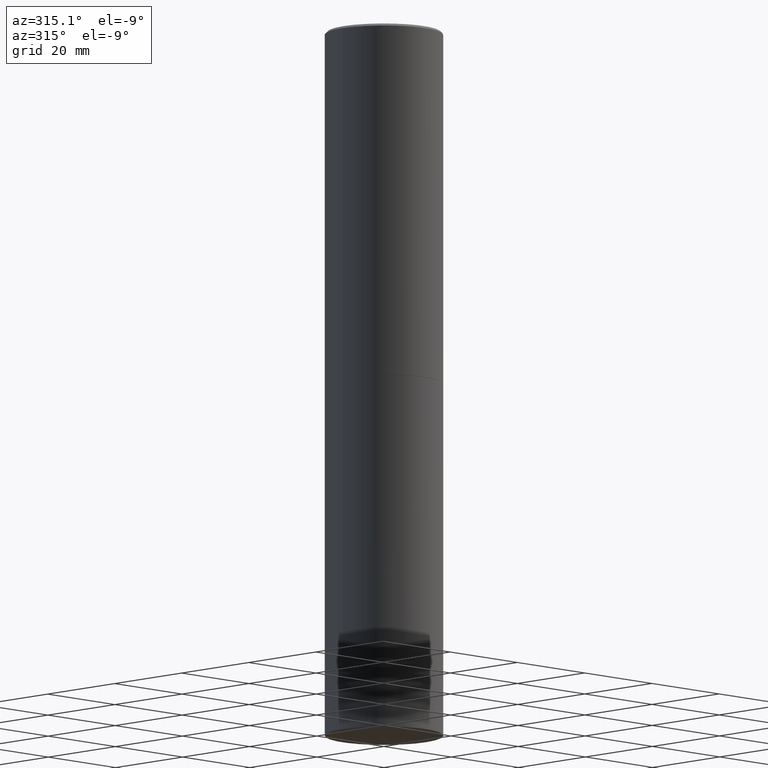
[diagram: clean part render]
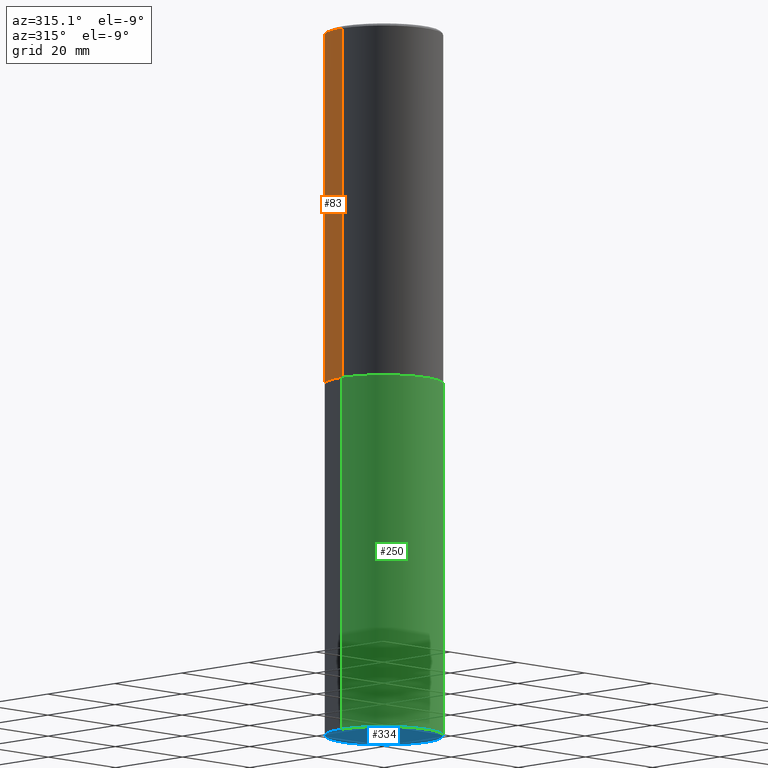
[diagram: same view with three faces highlighted in distinct colors, each labeled with its STEP entity id]
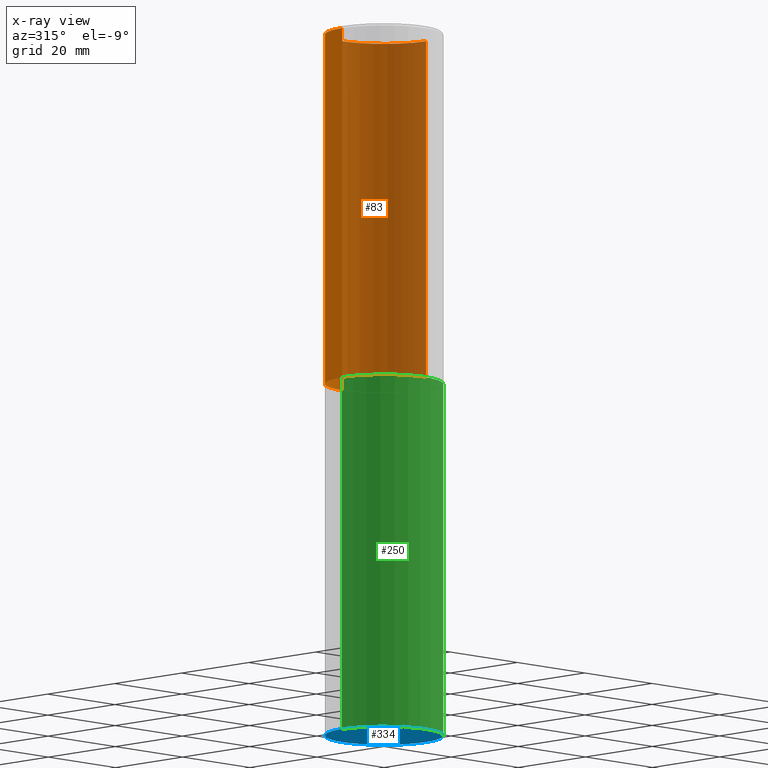
[diagram: x-ray of the same camera — body ghosted, the three highlighted faces saturated]
A machine part, auxiliary view with three faces highlighted in distinct colors.
The next image is the same camera in x-ray (body ghosted, the three faces saturated) — at least one of them is partly hidden behind the body in this view.
Their STEP definitions:

[orange] entity #83 — the highlighted cylindrical surface (partial cylindrical patch) has radius 12.5006 mm, axis along (-0, 0, 1).
#1 = LINE ( 'NONE', #234, #273 ) ;
#7 = CARTESIAN_POINT ( 'NONE',  ( 7.218290275216666916E-29, -1.030580546786331359E-14, -2.951700000000000212 ) ) ;
#24 = EDGE_CURVE ( 'NONE', #87, #362, #218, .T. ) ;
#28 = CARTESIAN_POINT ( 'NONE',  ( 0.4921499999999996988, -3.446223716380120377E-15, -0.02000000000000009409 ) ) ;
#39 = DIRECTION ( 'NONE',  ( 1.000000000000000000, -6.982962677686265922E-15, 0.000000000000000000 ) ) ;
#40 = AXIS2_PLACEMENT_3D ( 'NONE', #7, #116, #39 ) ;
#44 = CARTESIAN_POINT ( 'NONE',  ( -0.4921499999999996988, 3.366835455046430506E-15, -0.02000000000000009409 ) ) ;
#63 = DIRECTION ( 'NONE',  ( -2.445468806185136597E-29, 3.491481338843145583E-15, 1.000000000000000000 ) ) ;
#65 = DIRECTION ( 'NONE',  ( 1.000000000000000000, -6.982962677686265922E-15, 4.876176775795935793E-29 ) ) ;
#69 = CYLINDRICAL_SURFACE ( 'NONE', #153, 0.4921499999999998098 ) ;
#72 = ORIENTED_EDGE ( 'NONE', *, *, #141, .F. ) ;
#74 = EDGE_LOOP ( 'NONE', ( #246, #81, #127, #72 ) ) ;
#77 = CIRCLE ( 'NONE', #40, 0.4921499999999999764 ) ;
#81 = ORIENTED_EDGE ( 'NONE', *, *, #24, .T. ) ;
#83 = ADVANCED_FACE ( 'NONE', ( #267 ), #69, .T. ) ;
#85 = DIRECTION ( 'NONE',  ( -2.445468806185136877E-29, 3.491481338843145188E-15, 1.000000000000000000 ) ) ;
#87 = VERTEX_POINT ( 'NONE', #123 ) ;
#94 = VERTEX_POINT ( 'NONE', #28 ) ;
#113 = EDGE_CURVE ( 'NONE', #342, #87, #77, .T. ) ;
#116 = DIRECTION ( 'NONE',  ( -2.445468806185136597E-29, 3.491481338843145583E-15, 1.000000000000000000 ) ) ;
#123 = CARTESIAN_POINT ( 'NONE',  ( -0.4921499999999999764, -1.690881473276754954E-15, -2.951700000000000212 ) ) ;
#127 = ORIENTED_EDGE ( 'NONE', *, *, #254, .F. ) ;
#139 = CARTESIAN_POINT ( 'NONE',  ( -0.4921499999999998098, 3.496936074043331714E-15, -2.420853904668950949E-29 ) ) ;
#141 = EDGE_CURVE ( 'NONE', #342, #94, #1, .T. ) ;
#153 = AXIS2_PLACEMENT_3D ( 'NONE', #258, #63, #65 ) ;
#159 = CARTESIAN_POINT ( 'NONE',  ( 4.890937612370296805E-31, -6.982962677686323656E-17, -0.02000000000000009409 ) ) ;
#188 = DIRECTION ( 'NONE',  ( -2.445468806185136597E-29, 3.491481338843145583E-15, 1.000000000000000000 ) ) ;
#212 = CARTESIAN_POINT ( 'NONE',  ( 0.4921499999999999764, -1.374247054968660936E-14, -2.951700000000000212 ) ) ;
#218 = LINE ( 'NONE', #139, #293 ) ;
#221 = CIRCLE ( 'NONE', #338, 0.4921499999999996988 ) ;
#234 = CARTESIAN_POINT ( 'NONE',  ( 0.4921499999999998098, -3.436665081823294593E-15, 2.399810400207968762E-29 ) ) ;
#246 = ORIENTED_EDGE ( 'NONE', *, *, #113, .T. ) ;
#254 = EDGE_CURVE ( 'NONE', #94, #362, #221, .T. ) ;
#258 = CARTESIAN_POINT ( 'NONE',  ( 0.000000000000000000, 0.000000000000000000, 0.000000000000000000 ) ) ;
#267 = FACE_OUTER_BOUND ( 'NONE', #74, .T. ) ;
#273 = VECTOR ( 'NONE', #299, 39.37007874015748143 ) ;
#293 = VECTOR ( 'NONE', #85, 39.37007874015748143 ) ;
#296 = DIRECTION ( 'NONE',  ( 1.000000000000000000, -6.982962677686265922E-15, 0.000000000000000000 ) ) ;
#299 = DIRECTION ( 'NONE',  ( -2.445468806185136877E-29, 3.491481338843145188E-15, 1.000000000000000000 ) ) ;
#338 = AXIS2_PLACEMENT_3D ( 'NONE', #159, #188, #296 ) ;
#342 = VERTEX_POINT ( 'NONE', #212 ) ;
#362 = VERTEX_POINT ( 'NONE', #44 ) ;

[blue] entity #334 — the highlighted planar face has unit normal (0, -0, -1).
#19 = DIRECTION ( 'NONE',  ( 1.000000000000000000, -6.982962677686265922E-15, 0.000000000000000000 ) ) ;
#43 = CARTESIAN_POINT ( 'NONE',  ( 1.444171603492632270E-28, -2.061894304653819197E-14, -5.905499999999999972 ) ) ;
#100 = DIRECTION ( 'NONE',  ( -2.445468806185136597E-29, 3.491481338843145583E-15, 1.000000000000000000 ) ) ;
#101 = CARTESIAN_POINT ( 'NONE',  ( 0.4921499999999999764, -2.405560812836148932E-14, -5.905499999999999972 ) ) ;
#112 = DIRECTION ( 'NONE',  ( 2.438088387897960049E-29, -3.491481338843145188E-15, -1.000000000000000000 ) ) ;
#137 = DIRECTION ( 'NONE',  ( -1.000000000000000000, 6.982962677686265922E-15, -4.876176775795935793E-29 ) ) ;
#155 = DIRECTION ( 'NONE',  ( 1.000000000000000000, -6.982962677686265922E-15, 0.000000000000000000 ) ) ;
#158 = FACE_OUTER_BOUND ( 'NONE', #223, .T. ) ;
#176 = CIRCLE ( 'NONE', #268, 0.4921499999999999764 ) ;
#205 = CARTESIAN_POINT ( 'NONE',  ( -0.4921499999999999764, -1.196718392382684217E-14, -5.905499999999999972 ) ) ;
#213 = CARTESIAN_POINT ( 'NONE',  ( 1.444171603492632270E-28, -2.061894304653819197E-14, -5.905499999999999972 ) ) ;
#219 = CARTESIAN_POINT ( 'NONE',  ( 3.436665081823440533E-15, 0.4921499999999793262, -5.905500000000001748 ) ) ;
#223 = EDGE_LOOP ( 'NONE', ( #276, #256 ) ) ;
#229 = AXIS2_PLACEMENT_3D ( 'NONE', #219, #112, #137 ) ;
#232 = EDGE_CURVE ( 'NONE', #336, #358, #176, .T. ) ;
#253 = AXIS2_PLACEMENT_3D ( 'NONE', #213, #357, #19 ) ;
#256 = ORIENTED_EDGE ( 'NONE', *, *, #271, .F. ) ;
#268 = AXIS2_PLACEMENT_3D ( 'NONE', #43, #100, #155 ) ;
#271 = EDGE_CURVE ( 'NONE', #358, #336, #360, .T. ) ;
#276 = ORIENTED_EDGE ( 'NONE', *, *, #232, .F. ) ;
#329 = PLANE ( 'NONE',  #229 ) ;
#334 = ADVANCED_FACE ( 'NONE', ( #158 ), #329, .T. ) ;
#336 = VERTEX_POINT ( 'NONE', #101 ) ;
#357 = DIRECTION ( 'NONE',  ( -2.445468806185136597E-29, 3.491481338843145583E-15, 1.000000000000000000 ) ) ;
#358 = VERTEX_POINT ( 'NONE', #205 ) ;
#360 = CIRCLE ( 'NONE', #253, 0.4921499999999999764 ) ;

[green] entity #250 — the highlighted cylindrical surface (partial cylindrical patch) has radius 12.5006 mm, axis along (-0, 0, 1).
#10 = CYLINDRICAL_SURFACE ( 'NONE', #14, 0.4921499999999999764 ) ;
#13 = FACE_OUTER_BOUND ( 'NONE', #207, .T. ) ;
#14 = AXIS2_PLACEMENT_3D ( 'NONE', #244, #84, #324 ) ;
#17 = CARTESIAN_POINT ( 'NONE',  ( 7.220735744022852519E-29, -1.030929694920215502E-14, -2.952700000000000102 ) ) ;
#19 = DIRECTION ( 'NONE',  ( 1.000000000000000000, -6.982962677686265922E-15, 0.000000000000000000 ) ) ;
#22 = ORIENTED_EDGE ( 'NONE', *, *, #46, .F. ) ;
#31 = AXIS2_PLACEMENT_3D ( 'NONE', #17, #248, #303 ) ;
#41 = VERTEX_POINT ( 'NONE', #196 ) ;
#46 = EDGE_CURVE ( 'NONE', #60, #41, #227, .T. ) ;
#54 = CARTESIAN_POINT ( 'NONE',  ( -0.4921499999999999764, -1.196718392382684217E-14, -2.952700000000000102 ) ) ;
#60 = VERTEX_POINT ( 'NONE', #54 ) ;
#84 = DIRECTION ( 'NONE',  ( -2.445468806185136597E-29, 3.491481338843145583E-15, 1.000000000000000000 ) ) ;
#88 = EDGE_CURVE ( 'NONE', #358, #60, #178, .T. ) ;
#101 = CARTESIAN_POINT ( 'NONE',  ( 0.4921499999999999764, -2.405560812836148932E-14, -5.905499999999999972 ) ) ;
#102 = LINE ( 'NONE', #239, #138 ) ;
#138 = VECTOR ( 'NONE', #321, 39.37007874015748143 ) ;
#173 = DIRECTION ( 'NONE',  ( -2.445468806185136877E-29, 3.491481338843145188E-15, 1.000000000000000000 ) ) ;
#178 = LINE ( 'NONE', #288, #241 ) ;
#196 = CARTESIAN_POINT ( 'NONE',  ( 0.4921499999999999764, -1.374596203102545079E-14, -2.952700000000000102 ) ) ;
#198 = EDGE_CURVE ( 'NONE', #336, #41, #102, .T. ) ;
#205 = CARTESIAN_POINT ( 'NONE',  ( -0.4921499999999999764, -1.196718392382684217E-14, -5.905499999999999972 ) ) ;
#207 = EDGE_LOOP ( 'NONE', ( #231, #257, #214, #22 ) ) ;
#213 = CARTESIAN_POINT ( 'NONE',  ( 1.444171603492632270E-28, -2.061894304653819197E-14, -5.905499999999999972 ) ) ;
#214 = ORIENTED_EDGE ( 'NONE', *, *, #198, .T. ) ;
#227 = CIRCLE ( 'NONE', #31, 0.4921499999999999764 ) ;
#231 = ORIENTED_EDGE ( 'NONE', *, *, #88, .F. ) ;
#239 = CARTESIAN_POINT ( 'NONE',  ( 0.4921499999999999764, -3.436665081823295777E-15, 2.399810400207969603E-29 ) ) ;
#241 = VECTOR ( 'NONE', #173, 39.37007874015748143 ) ;
#244 = CARTESIAN_POINT ( 'NONE',  ( 0.000000000000000000, 0.000000000000000000, 0.000000000000000000 ) ) ;
#248 = DIRECTION ( 'NONE',  ( -2.445468806185136597E-29, 3.491481338843145583E-15, 1.000000000000000000 ) ) ;
#250 = ADVANCED_FACE ( 'NONE', ( #13 ), #10, .T. ) ;
#253 = AXIS2_PLACEMENT_3D ( 'NONE', #213, #357, #19 ) ;
#257 = ORIENTED_EDGE ( 'NONE', *, *, #271, .T. ) ;
#271 = EDGE_CURVE ( 'NONE', #358, #336, #360, .T. ) ;
#288 = CARTESIAN_POINT ( 'NONE',  ( -0.4921499999999999764, 3.496936074043332897E-15, -2.420853904668951509E-29 ) ) ;
#303 = DIRECTION ( 'NONE',  ( 1.000000000000000000, -6.982962677686265922E-15, 0.000000000000000000 ) ) ;
#321 = DIRECTION ( 'NONE',  ( -2.445468806185136877E-29, 3.491481338843145188E-15, 1.000000000000000000 ) ) ;
#324 = DIRECTION ( 'NONE',  ( 1.000000000000000000, -6.982962677686265922E-15, 4.876176775795935793E-29 ) ) ;
#336 = VERTEX_POINT ( 'NONE', #101 ) ;
#357 = DIRECTION ( 'NONE',  ( -2.445468806185136597E-29, 3.491481338843145583E-15, 1.000000000000000000 ) ) ;
#358 = VERTEX_POINT ( 'NONE', #205 ) ;
#360 = CIRCLE ( 'NONE', #253, 0.4921499999999999764 ) ;